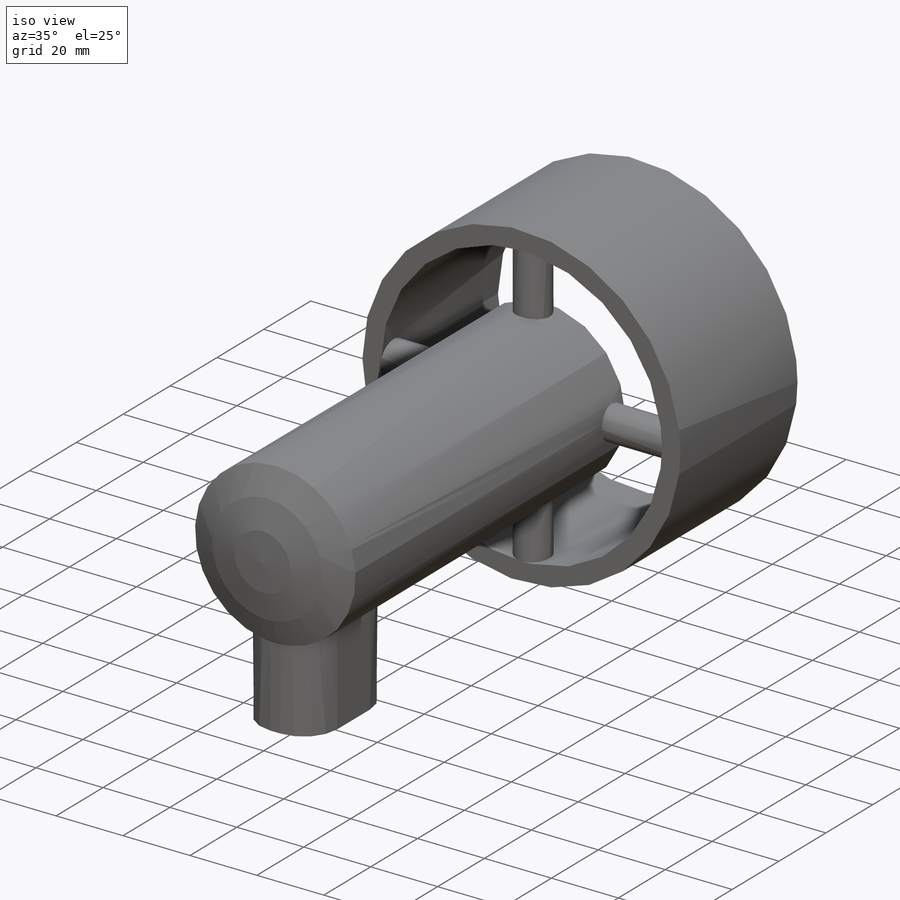
[diagram: iso view]
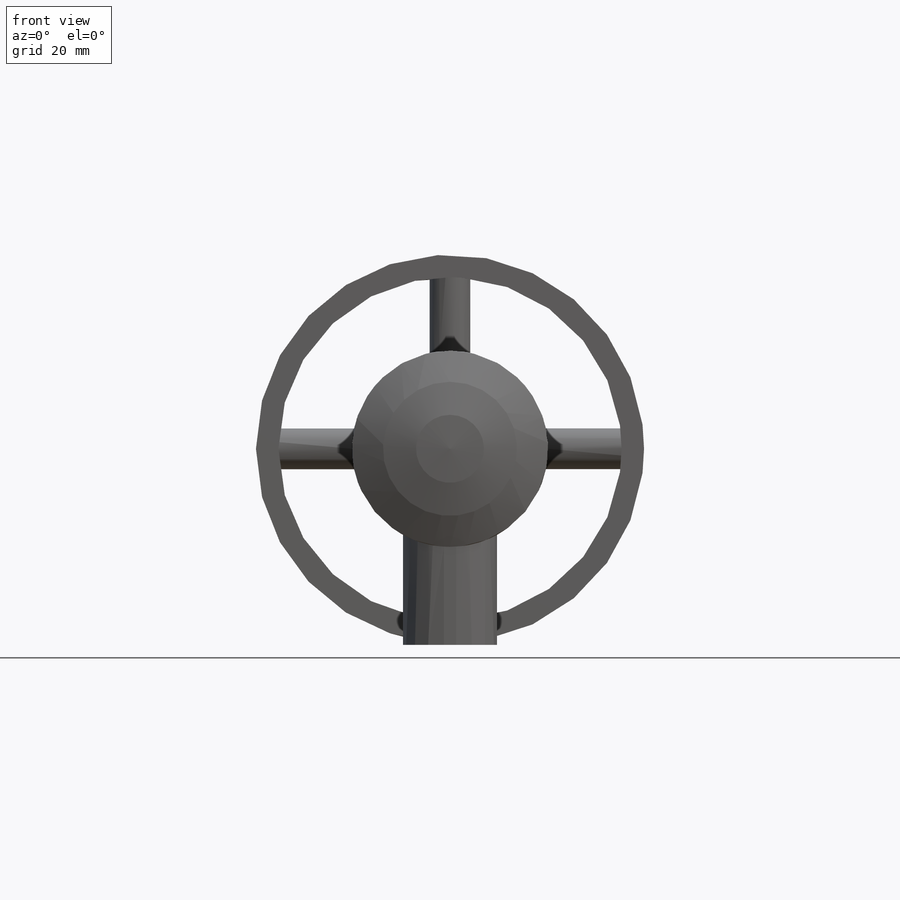
[diagram: front view]
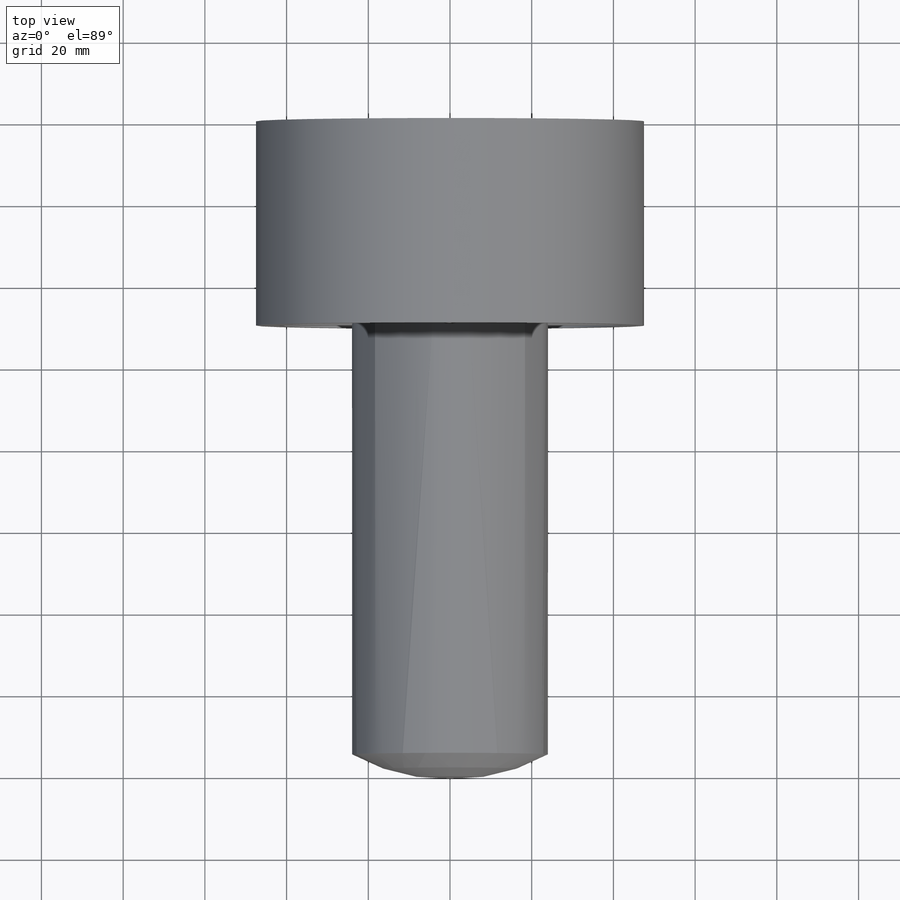
[diagram: top view]
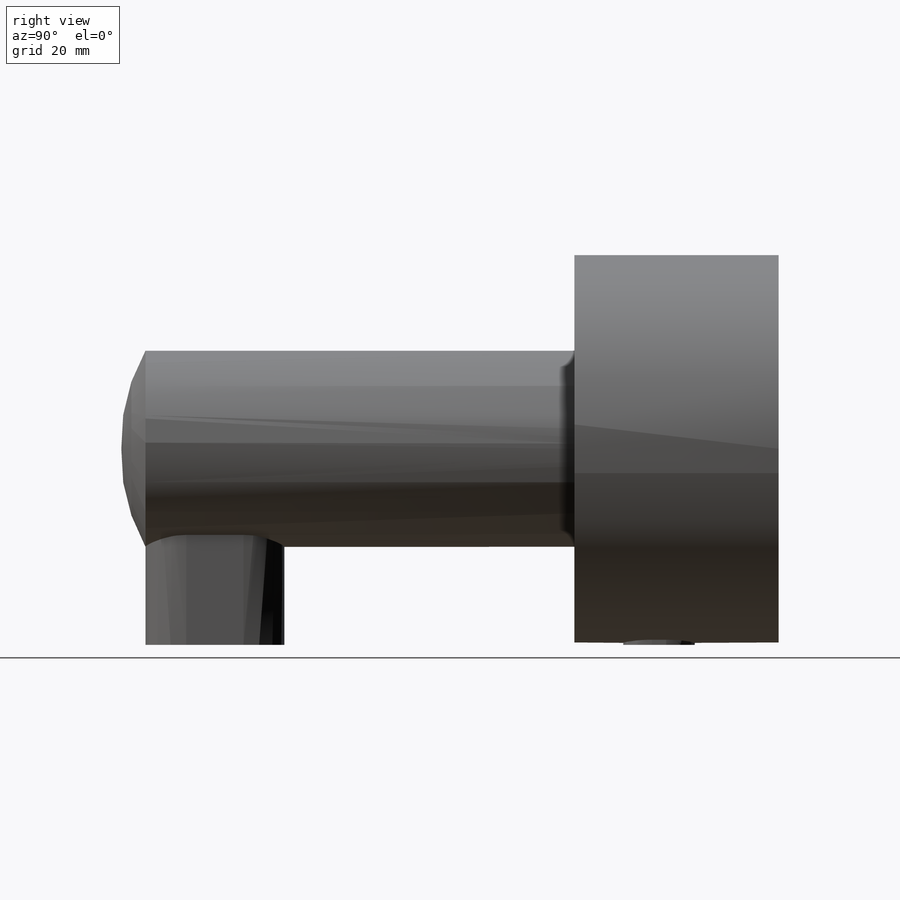
[diagram: right view]
SOLIDWORKS PART (.sldprt)
format: sldprt  version: not decoded by parser v0  size: 555,520 bytes
history: native  units: mm
features: sketch x8, extrude x5, material x1, revolve x1, hole x1 (+11 scaffold rows collapsed)
feature tree (27):
  scaffold x11  (default folders/planes/origin — collapsed)
  material  "PTFE (general)"
  sketch  "Sketch1"  dims[D1=~42.42686mm]
  extrude  "Extrude1"  Depth=50mm
  sketch  "Sketch2"  dims[D1=23.0mm]
  extrude  "Extrude2"  Depth=115mm
  sketch  "Sketch3"
  revolve  "Revolve1"  Angle=360deg
  sketch  "Sketch4"  dims[D2=~4.18453mm D1=45.0mm]
  extrude  "Extrude4"  Depth=45mm
  sketch  "Sketch5"  dims[D1=45.0mm]
  extrude  "Extrude5"  Depth=45mm
  sketch  "Sketch6"  dims[c1.D7=10.0mm c1.D8=7.0mm c1.D1=22.6mm c1.D2=98.25mm c1.D3=17.0mm c1.D4=17.5mm c1.D5=~18.089994mm c2.D5=270.0deg c3.D5=23.0mm c3.D6=34.0mm]
  extrude  "Extrude7"  Depth=48mm
  hole  "#6 (0.204) Diameter Hole1"  Diameter=5.1816mm Depth=2mm
  sketch  "3DSketch3"  dims[D1=8.75mm D2=8.75mm D3=8.5mm D4=98.25mm D5=22.6mm]
  sketch  "Sketch7"  dims[hole-wizard template sketch: 46 standard entries collapsed; hole parameters kept: c15.Hole Dia.=5.1816mm c15.Hole Depth=2.0mm c15.D3=~14.816244mm c15.Drill Angle=118.0deg]
decode coverage: 14 of 15 modeling features carry decoded parameters
note: ~ marks probable driven/reference dimensions
note: suppression state not decoded; provenance and decode notes live in map.json
